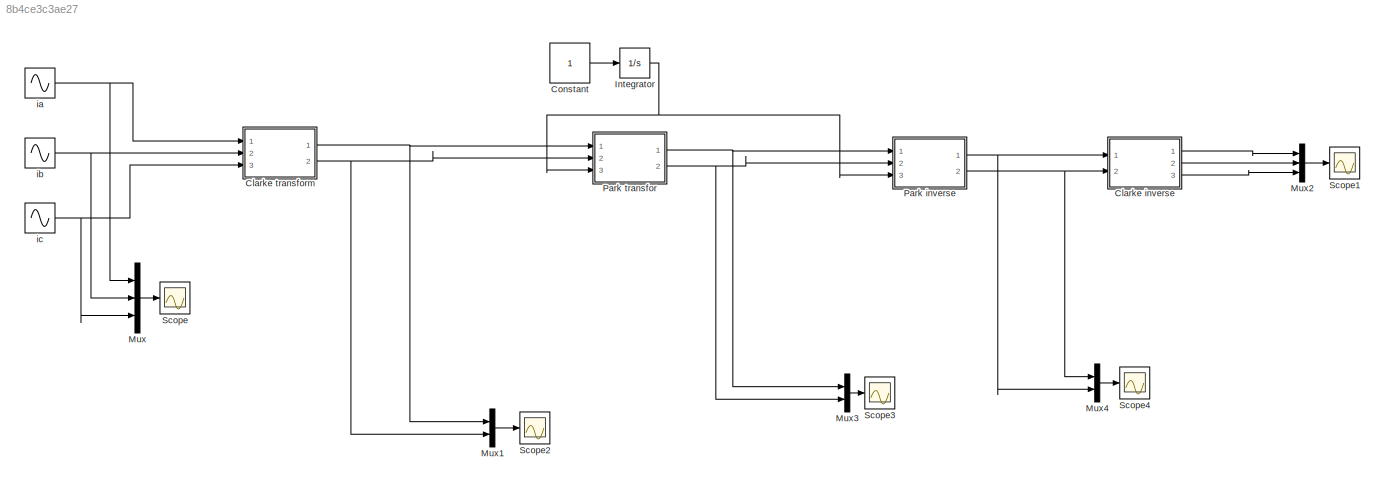
MODEL slx_8b4ce3c3ae27
KIND model
CONFIG AbsTol = auto
CONFIG EnableMultiTasking = off
CONFIG FixedStep = auto
CONFIG MaxStep = auto
CONFIG MinStep = auto
CONFIG RelTol = 1e-3
CONFIG SampleTimeConstraint = Unconstrained
CONFIG Solver = VariableStepAuto
CONFIG SolverName = VariableStepAuto
CONFIG StartTime = 0.0
CONFIG StopTime = 10.0
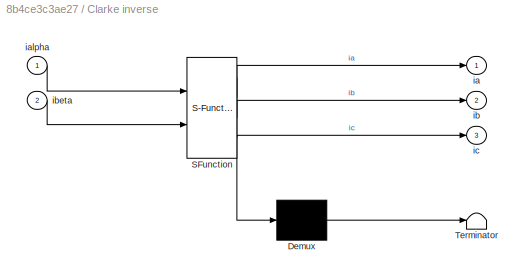
BLOCK [SubSystem] Clarke inverse
  ErrorFcn = Stateflow.Translate.translate
  PermitHierarchicalResolution = ExplicitOnly
  Ports = [2, 3]
  RequestExecContextInheritance = off
  SFBlockType = MATLAB Function
  TreatAsAtomicUnit = on
BLOCK [Demux] Clarke inverse/ Demux 
  Outputs = 1
  Ports = [1, 1]
BLOCK [S-Function] Clarke inverse/ SFunction 
  EnableBusSupport = on
  FunctionName = sf_sfun
  PortCounts = [2 4]
  Ports = [2, 4]
  SFcnIsStateOwnerBlock = off
  SFunctionDeploymentMode = off
  Tag = Stateflow S-Function transfoclarkepark 1
BLOCK [Terminator] Clarke inverse/ Terminator 
BLOCK [Outport] Clarke inverse/ia
  IconDisplay = Port number
BLOCK [Inport] Clarke inverse/ialpha
  IconDisplay = Port number
BLOCK [Outport] Clarke inverse/ib
  IconDisplay = Port number
  Port = 2
BLOCK [Inport] Clarke inverse/ibeta
  IconDisplay = Port number
  Port = 2
BLOCK [Outport] Clarke inverse/ic
  IconDisplay = Port number
  Port = 3
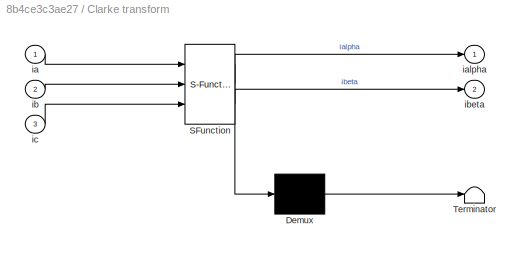
BLOCK [SubSystem] Clarke transform 
  ErrorFcn = Stateflow.Translate.translate
  PermitHierarchicalResolution = ExplicitOnly
  Ports = [3, 2]
  RequestExecContextInheritance = off
  SFBlockType = MATLAB Function
  TreatAsAtomicUnit = on
BLOCK [Demux] Clarke transform / Demux 
  Outputs = 1
  Ports = [1, 1]
BLOCK [S-Function] Clarke transform / SFunction 
  EnableBusSupport = on
  FunctionName = sf_sfun
  PortCounts = [3 3]
  Ports = [3, 3]
  SFcnIsStateOwnerBlock = off
  SFunctionDeploymentMode = off
  Tag = Stateflow S-Function transfoclarkepark 2
BLOCK [Terminator] Clarke transform / Terminator 
BLOCK [Inport] Clarke transform /ia
  IconDisplay = Port number
BLOCK [Outport] Clarke transform /ialpha
  IconDisplay = Port number
BLOCK [Inport] Clarke transform /ib
  IconDisplay = Port number
  Port = 2
BLOCK [Outport] Clarke transform /ibeta
  IconDisplay = Port number
  Port = 2
BLOCK [Inport] Clarke transform /ic
  IconDisplay = Port number
  Port = 3
BLOCK [Constant] Constant
  SampleTime = -1
  VectorParams1D = off
BLOCK [Integrator] Integrator
  Ports = [1, 1]
BLOCK [Mux] Mux
  DisplayOption = bar
  Inputs = 3
  Ports = [3, 1]
BLOCK [Mux] Mux1
  DisplayOption = bar
  Inputs = 2
  Ports = [2, 1]
BLOCK [Mux] Mux2
  DisplayOption = bar
  Inputs = 3
  Ports = [3, 1]
BLOCK [Mux] Mux3
  DisplayOption = bar
  Inputs = 2
  Ports = [2, 1]
BLOCK [Mux] Mux4
  DisplayOption = bar
  Inputs = 2
  Ports = [2, 1]
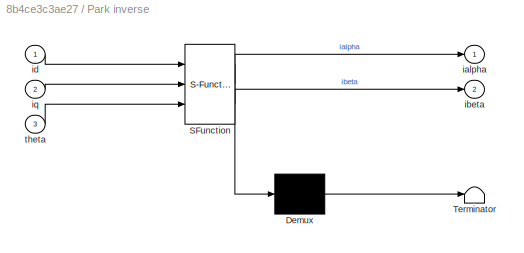
BLOCK [SubSystem] Park inverse 
  ErrorFcn = Stateflow.Translate.translate
  PermitHierarchicalResolution = ExplicitOnly
  Ports = [3, 2]
  RequestExecContextInheritance = off
  SFBlockType = MATLAB Function
  TreatAsAtomicUnit = on
BLOCK [Demux] Park inverse / Demux 
  Outputs = 1
  Ports = [1, 1]
BLOCK [S-Function] Park inverse / SFunction 
  EnableBusSupport = on
  FunctionName = sf_sfun
  PortCounts = [3 3]
  Ports = [3, 3]
  SFcnIsStateOwnerBlock = off
  SFunctionDeploymentMode = off
  Tag = Stateflow S-Function transfoclarkepark 4
BLOCK [Terminator] Park inverse / Terminator 
BLOCK [Outport] Park inverse /ialpha
  IconDisplay = Port number
BLOCK [Outport] Park inverse /ibeta
  IconDisplay = Port number
  Port = 2
BLOCK [Inport] Park inverse /id
  IconDisplay = Port number
BLOCK [Inport] Park inverse /iq
  IconDisplay = Port number
  Port = 2
BLOCK [Inport] Park inverse /theta
  IconDisplay = Port number
  Port = 3
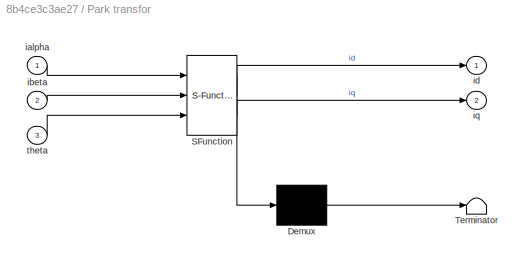
BLOCK [SubSystem] Park transfor 
  ErrorFcn = Stateflow.Translate.translate
  PermitHierarchicalResolution = ExplicitOnly
  Ports = [3, 2]
  RequestExecContextInheritance = off
  SFBlockType = MATLAB Function
  TreatAsAtomicUnit = on
BLOCK [Demux] Park transfor / Demux 
  Outputs = 1
  Ports = [1, 1]
BLOCK [S-Function] Park transfor / SFunction 
  EnableBusSupport = on
  FunctionName = sf_sfun
  PortCounts = [3 3]
  Ports = [3, 3]
  SFcnIsStateOwnerBlock = off
  SFunctionDeploymentMode = off
  Tag = Stateflow S-Function transfoclarkepark 3
BLOCK [Terminator] Park transfor / Terminator 
BLOCK [Inport] Park transfor /ialpha
  IconDisplay = Port number
BLOCK [Inport] Park transfor /ibeta
  IconDisplay = Port number
  Port = 2
BLOCK [Outport] Park transfor /id
  IconDisplay = Port number
BLOCK [Outport] Park transfor /iq
  IconDisplay = Port number
  Port = 2
BLOCK [Inport] Park transfor /theta
  IconDisplay = Port number
  Port = 3
BLOCK [Scope] Scope
  Floating = off
  NumInputPorts = 1
  Ports = [1]
  ScopeSpecificationString = Simulink.scopes.TimeScopeBlockCfg('CurrentConfiguration', extmgr.ConfigurationSet(extmgr.Configuration('Core','General UI',true,'FigureColor',[0.941176470588235 0.941176470588235 0.941176470588235]),extmgr.Configuration('Core','Source UI',true),extmgr.Configuration('Sources','WiredSimulink',true,'DataLoggingVariableName','ScopeData3'),extmgr.Configuration('Visuals','Time Domain',true,'SerializedDi...<+2240ch>
BLOCK [Scope] Scope1
  Floating = off
  NumInputPorts = 1
  Ports = [1]
  ScopeSpecificationString = Simulink.scopes.TimeScopeBlockCfg('CurrentConfiguration', extmgr.ConfigurationSet(extmgr.Configuration('Core','General UI',true),extmgr.Configuration('Core','Source UI',true),extmgr.Configuration('Sources','WiredSimulink',true,'DataLoggingVariableName','YYS','DataLogging',true,'DataLoggingSaveFormat','StructureWithTime'),extmgr.Configuration('Visuals','Time Domain',true,'SerializedDisplays',{struc...<+1507ch>
BLOCK [Scope] Scope2
  Floating = off
  NumInputPorts = 1
  Ports = [1]
  ScopeSpecificationString = Simulink.scopes.TimeScopeBlockCfg('CurrentConfiguration', extmgr.ConfigurationSet(extmgr.Configuration('Core','General UI',true,'FigureColor',[0.941176470588235 0.941176470588235 0.941176470588235]),extmgr.Configuration('Core','Source UI',true),extmgr.Configuration('Sources','WiredSimulink',true,'DataLoggingVariableName','YYC','DataLoggingSaveFormat','StructureWithTime','DataLoggingLimitDataPoints...<+2508ch>
BLOCK [Scope] Scope3
  Floating = off
  NumInputPorts = 1
  Ports = [1]
  ScopeSpecificationString = Simulink.scopes.TimeScopeBlockCfg('CurrentConfiguration', extmgr.ConfigurationSet(extmgr.Configuration('Core','General UI',true,'FigureColor',[0.941176470588235 0.941176470588235 0.941176470588235]),extmgr.Configuration('Core','Source UI',true),extmgr.Configuration('Sources','WiredSimulink',true,'DataLoggingVariableName','ScopeData1','DataLoggingSaveFormat','StructureWithTime','DataLoggingLimitDat...<+2661ch>
BLOCK [Scope] Scope4
  Floating = off
  NumInputPorts = 1
  Ports = [1]
  ScopeSpecificationString = Simulink.scopes.TimeScopeBlockCfg('CurrentConfiguration', extmgr.ConfigurationSet(extmgr.Configuration('Core','General UI',true,'FigureColor',[0.941176470588235 0.941176470588235 0.941176470588235]),extmgr.Configuration('Core','Source UI',true),extmgr.Configuration('Sources','WiredSimulink',true,'DataLoggingVariableName','ScopeData2','DataLoggingSaveFormat','StructureWithTime','DataLoggingLimitDat...<+2465ch>
BLOCK [Sin] ia
  Amplitude = 36
  Ports = [0, 1]
  SampleTime = 0
BLOCK [Sin] ib
  Amplitude = 36
  Phase = -2*pi/3
  Ports = [0, 1]
  SampleTime = 0
BLOCK [Sin] ic
  Amplitude = 36
  Phase = 2*pi/3
  Ports = [0, 1]
  SampleTime = 0
LINE Clarke inverse:1 -> Mux2:1
LINE Clarke inverse:2 -> Mux2:2
LINE Clarke inverse:3 -> Mux2:3
NET Clarke transform :1 -> Mux1:1, Park transfor :1
NET Clarke transform :2 -> Mux1:2, Park transfor :2
LINE Constant:1 -> Integrator:1
NET Integrator:1 -> Park inverse :3, Park transfor :3
LINE Mux1:1 -> Scope2:1
LINE Mux2:1 -> Scope1:1
LINE Mux3:1 -> Scope3:1
LINE Mux4:1 -> Scope4:1
LINE Mux:1 -> Scope:1
NET Park inverse :1 -> Clarke inverse:1, Mux4:2
NET Park inverse :2 -> Clarke inverse:2, Mux4:1
NET Park transfor :1 -> Mux3:1, Park inverse :1
NET Park transfor :2 -> Mux3:2, Park inverse :2
NET ia:1 -> Clarke transform :1, Mux:1
NET ib:1 -> Clarke transform :2, Mux:2
NET ic:1 -> Clarke transform :3, Mux:3
note: NET lines group one-source signal fan-out (src -> all destinations, sorted); 1:1 wires keep LINE
CHART Clarke inverse states=1 transitions=1
  STATE_LABEL 'eML_blk_kernel()'
  STATE_LABEL 'SCRIPT:\nfunction [ia,ib,ic]= fcn(ialpha,ibeta)\nI = [ialpha; ibeta; 0];\nM_C=[1 0 0;1/sqrt(3) 2/sqrt(3) 0; 1 1 1];\nsolu=inv(M_C)*I;\nia = solu(1);\nib=solu(2);\nic= solu(3);\nend\n'
CHART Clarke transform
 states=1 transitions=1
  STATE_LABEL 'eML_blk_kernel()'
  STATE_LABEL 'SCRIPT:\nfunction [ialpha,ibeta]= fcn(ia,ib,ic)\nI =[ ia;ib;ic];\nM_C=[1 0 0;1/sqrt(3) 2/sqrt(3) 0; 1 1 1];\nsolu=(M_C)*I;\nialpha= solu(1);\nibeta=solu(2);\nend\n'
CHART Park transfor
 states=1 transitions=1
  STATE_LABEL 'eML_blk_kernel()'
  STATE_LABEL 'SCRIPT:\nfunction [id,iq]= fcn(ialpha,ibeta,theta)\n\nI=[ialpha;ibeta];\nM_P=[cos(theta) sin(theta); -sin(theta) cos(theta)];\nsolu=M_P*I;\nid=solu(1);\niq=solu(2);\n\nend\n'
CHART Park inverse
 states=1 transitions=1
  STATE_LABEL 'eML_blk_kernel()'
  STATE_LABEL 'SCRIPT:\nfunction [ialpha,ibeta]= fcn(id,iq,theta)\nI=[id; iq]\nM_P=[cos(theta) sin(theta); -sin(theta) cos(theta)];\nsolu=inv(M_P)*I;\nialpha = solu(1);\nibeta=solu(2);\nend\n'
